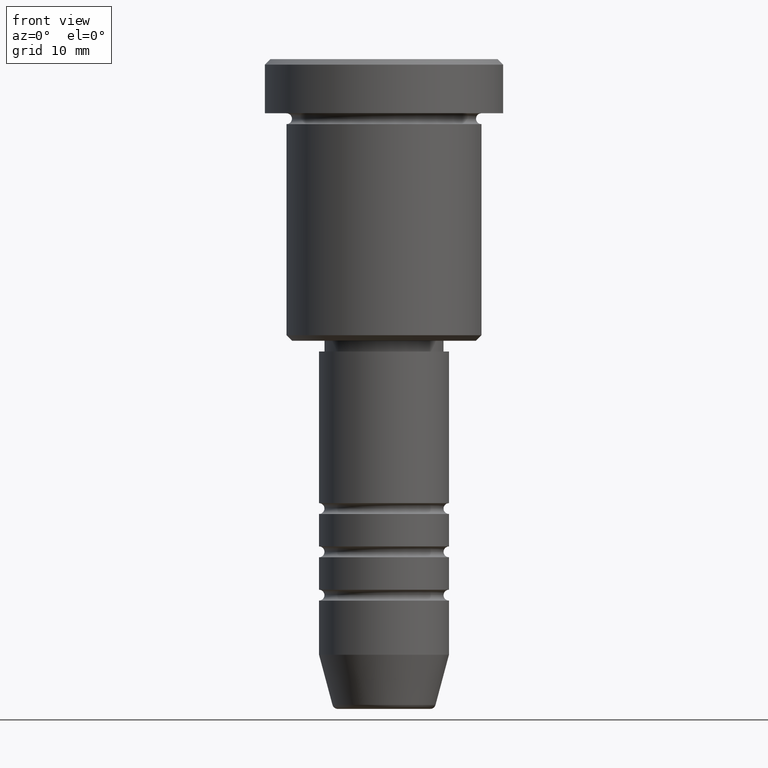
[diagram: clean part render]
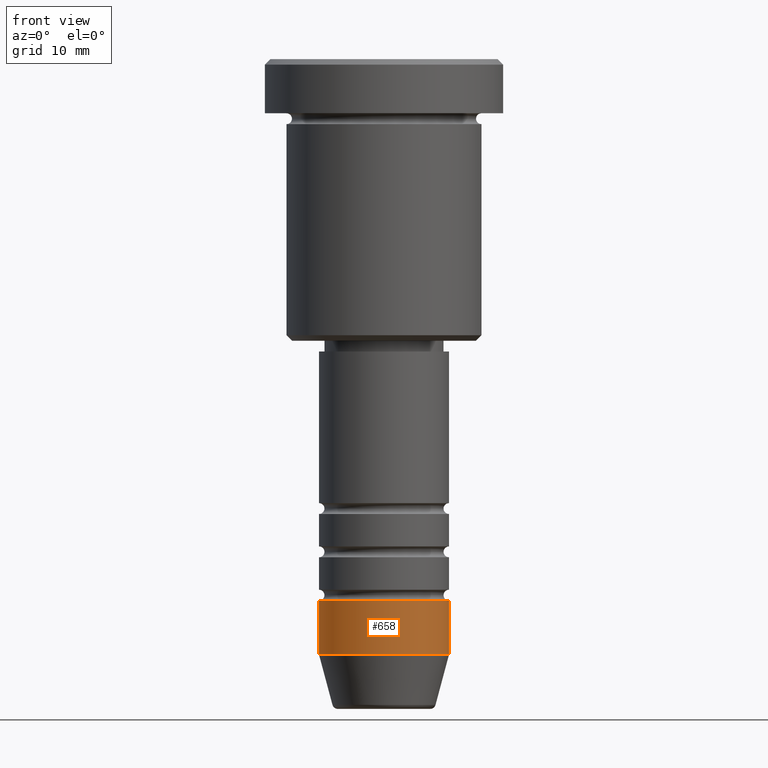
[diagram: same view with one face highlighted and labeled with its STEP entity id]
A machine part, front view. The second image highlights one B-rep face of the part: STEP entity #658.
In plain terms, the highlighted cylindrical surface (partial cylindrical patch) has radius 6 mm, axis along (-0, -0, 1).
Its self-contained STEP definition (entity closure, byte-faithful):
#8 = VERTEX_POINT ( 'NONE', #136 ) ;
#16 = DIRECTION ( 'NONE',  ( -0.000000000000000000, -0.000000000000000000, 1.000000000000000000 ) ) ;
#81 = CARTESIAN_POINT ( 'NONE',  ( 0.000000000000000000, 0.000000000000000000, -50.00000000000000000 ) ) ;
#93 = CYLINDRICAL_SURFACE ( 'NONE', #1043, 6.000000000000000000 ) ;
#136 = CARTESIAN_POINT ( 'NONE',  ( 5.999999999999999112, 0.000000000000000000, -50.00000000000000000 ) ) ;
#140 = DIRECTION ( 'NONE',  ( -0.000000000000000000, -0.000000000000000000, 1.000000000000000000 ) ) ;
#178 = VERTEX_POINT ( 'NONE', #454 ) ;
#195 = FACE_OUTER_BOUND ( 'NONE', #587, .T. ) ;
#203 = AXIS2_PLACEMENT_3D ( 'NONE', #81, #868, #424 ) ;
#219 = LINE ( 'NONE', #665, #674 ) ;
#252 = EDGE_CURVE ( 'NONE', #580, #8, #980, .T. ) ;
#268 = CARTESIAN_POINT ( 'NONE',  ( 6.000000000000000000, 0.000000000000000000, 0.000000000000000000 ) ) ;
#302 = CARTESIAN_POINT ( 'NONE',  ( 6.000000000000000000, 0.000000000000000000, -55.00000000000000000 ) ) ;
#320 = VECTOR ( 'NONE', #16, 1000.000000000000000 ) ;
#341 = ORIENTED_EDGE ( 'NONE', *, *, #679, .F. ) ;
#375 = CIRCLE ( 'NONE', #203, 5.999999999999999112 ) ;
#424 = DIRECTION ( 'NONE',  ( 1.000000000000000000, 0.000000000000000000, 0.000000000000000000 ) ) ;
#452 = CARTESIAN_POINT ( 'NONE',  ( 0.000000000000000000, 0.000000000000000000, 0.000000000000000000 ) ) ;
#454 = CARTESIAN_POINT ( 'NONE',  ( -6.000000000000000000, 7.347880794884119736E-16, -55.00000000000000000 ) ) ;
#539 = DIRECTION ( 'NONE',  ( 1.000000000000000000, 0.000000000000000000, 0.000000000000000000 ) ) ;
#567 = ORIENTED_EDGE ( 'NONE', *, *, #625, .T. ) ;
#580 = VERTEX_POINT ( 'NONE', #302 ) ;
#587 = EDGE_LOOP ( 'NONE', ( #341, #567, #802, #619 ) ) ;
#619 = ORIENTED_EDGE ( 'NONE', *, *, #909, .F. ) ;
#625 = EDGE_CURVE ( 'NONE', #178, #580, #636, .T. ) ;
#626 = CARTESIAN_POINT ( 'NONE',  ( -5.999999999999999112, 7.347880794884118750E-16, -50.00000000000000000 ) ) ;
#636 = CIRCLE ( 'NONE', #712, 6.000000000000000000 ) ;
#637 = DIRECTION ( 'NONE',  ( 1.000000000000000000, 0.000000000000000000, 0.000000000000000000 ) ) ;
#658 = ADVANCED_FACE ( 'NONE', ( #195 ), #93, .T. ) ;
#665 = CARTESIAN_POINT ( 'NONE',  ( -6.000000000000000000, 7.347880794884119736E-16, 0.000000000000000000 ) ) ;
#674 = VECTOR ( 'NONE', #140, 1000.000000000000000 ) ;
#679 = EDGE_CURVE ( 'NONE', #178, #1013, #219, .T. ) ;
#712 = AXIS2_PLACEMENT_3D ( 'NONE', #810, #737, #539 ) ;
#737 = DIRECTION ( 'NONE',  ( -0.000000000000000000, -0.000000000000000000, 1.000000000000000000 ) ) ;
#802 = ORIENTED_EDGE ( 'NONE', *, *, #252, .T. ) ;
#810 = CARTESIAN_POINT ( 'NONE',  ( 0.000000000000000000, 0.000000000000000000, -55.00000000000000000 ) ) ;
#868 = DIRECTION ( 'NONE',  ( -0.000000000000000000, -0.000000000000000000, 1.000000000000000000 ) ) ;
#909 = EDGE_CURVE ( 'NONE', #1013, #8, #375, .T. ) ;
#980 = LINE ( 'NONE', #268, #320 ) ;
#1013 = VERTEX_POINT ( 'NONE', #626 ) ;
#1043 = AXIS2_PLACEMENT_3D ( 'NONE', #452, #1096, #637 ) ;
#1096 = DIRECTION ( 'NONE',  ( -0.000000000000000000, -0.000000000000000000, 1.000000000000000000 ) ) ;